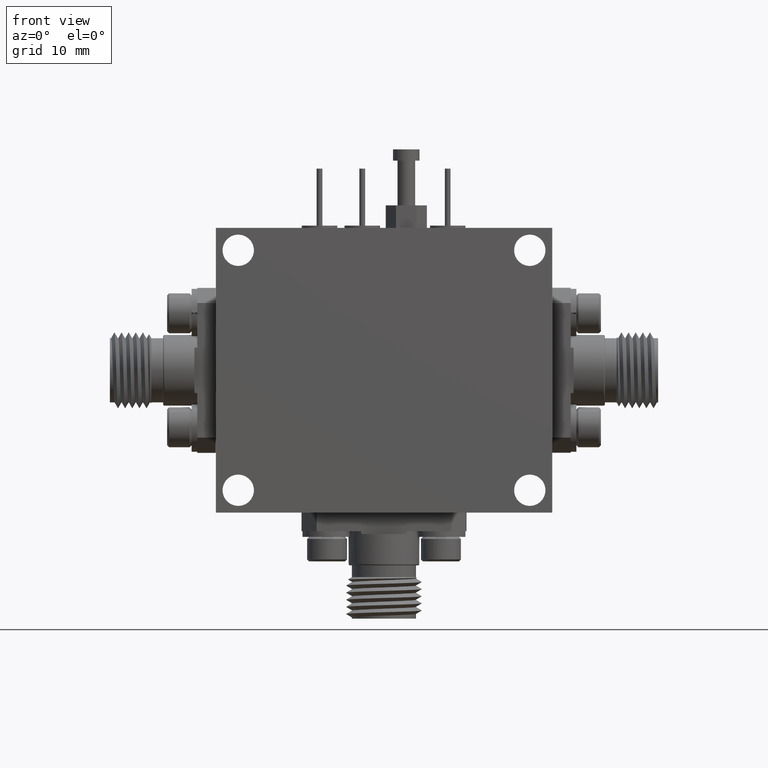
[diagram: clean part render]
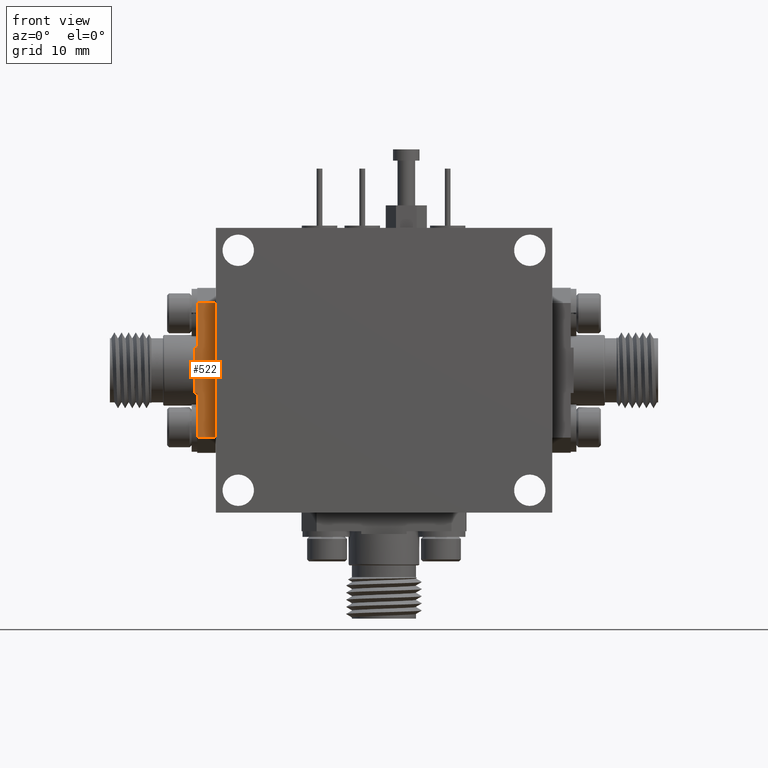
[diagram: same view with one face highlighted and labeled with its STEP entity id]
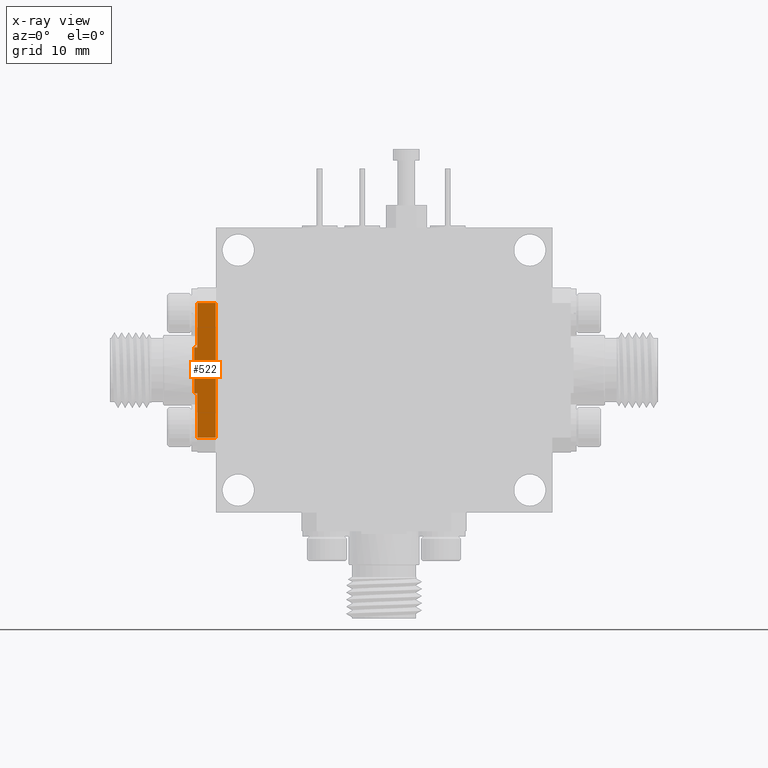
[diagram: x-ray of the same camera — body ghosted, the highlighted face saturated]
A machine part, front view. The second image highlights one B-rep face of the part: STEP entity #522.
The next image is the same camera in x-ray: the body ghosted, the highlighted face saturated — about 0% of this face is hidden behind the body in this view.
In plain terms, the highlighted planar face has unit normal (-0, 1, -0).
Its self-contained STEP definition (entity closure, byte-faithful):
#334 = CARTESIAN_POINT ( 'NONE',  ( -0.06890135264411047200, 0.6307667375718607500, 0.8853301636433635900 ) ) ;
#522 = ADVANCED_FACE ( 'NONE', ( #6090 ), #26674, .F. ) ;
#1013 = EDGE_CURVE ( 'NONE', #16534, #16725, #33901, .T. ) ;
#1406 = CARTESIAN_POINT ( 'NONE',  ( -0.05890135264411031800, 0.6307667375718607500, 0.5316388269033710500 ) ) ;
#2067 = VECTOR ( 'NONE', #10062, 39.37007874015748100 ) ;
#2663 = CARTESIAN_POINT ( 'NONE',  ( -0.05890135264411029000, 0.6307667375718607500, 1.042124349095312500 ) ) ;
#2882 = VERTEX_POINT ( 'NONE', #14050 ) ;
#3835 = VECTOR ( 'NONE', #19912, 39.37007874015748100 ) ;
#5537 = VECTOR ( 'NONE', #23177, 39.37007874015748100 ) ;
#5554 = CARTESIAN_POINT ( 'NONE',  ( -0.06890135264411019500, 0.6307667375718607500, 0.7259438405161892100 ) ) ;
#6090 = FACE_OUTER_BOUND ( 'NONE', #9667, .T. ) ;
#6252 = DIRECTION ( 'NONE',  ( 1.000000000000000000, -7.205886103679894100E-017, -1.577915401140480500E-016 ) ) ;
#6552 = ORIENTED_EDGE ( 'NONE', *, *, #28955, .F. ) ;
#6654 = CARTESIAN_POINT ( 'NONE',  ( 0.006098647355889674900, 0.6307667375718607500, 0.5691496550642402000 ) ) ;
#7209 = VECTOR ( 'NONE', #37526, 39.37007874015748100 ) ;
#7935 = CARTESIAN_POINT ( 'NONE',  ( -0.05890135264411030400, 0.6307667375718607500, 0.8853301636433635900 ) ) ;
#8130 = LINE ( 'NONE', #2663, #7209 ) ;
#8366 = EDGE_CURVE ( 'NONE', #19789, #36614, #31237, .T. ) ;
#8570 = VECTOR ( 'NONE', #17309, 39.37007874015748100 ) ;
#8848 = CARTESIAN_POINT ( 'NONE',  ( 0.006098647355889672300, 0.6307667375718607500, 0.5316388269033708300 ) ) ;
#9414 = LINE ( 'NONE', #18201, #29951 ) ;
#9667 = EDGE_LOOP ( 'NONE', ( #27008, #12512, #29089, #31483, #14895, #33853, #6552, #14021 ) ) ;
#10062 = DIRECTION ( 'NONE',  ( -6.425306481098354000E-017, 1.113111725038923500E-016, 1.000000000000000000 ) ) ;
#10619 = VECTOR ( 'NONE', #30764, 39.37007874015748100 ) ;
#11018 = CARTESIAN_POINT ( 'NONE',  ( 0.006098647355889697500, 0.6307667375718607500, 1.042124349095312300 ) ) ;
#11587 = EDGE_CURVE ( 'NONE', #2882, #33018, #33817, .T. ) ;
#12275 = DIRECTION ( 'NONE',  ( -2.161765831103969000E-016, 1.000000000000000000, -1.113111725038923500E-016 ) ) ;
#12368 = CARTESIAN_POINT ( 'NONE',  ( -0.05890135264411029000, 0.6307667375718607500, 1.042124349095312000 ) ) ;
#12512 = ORIENTED_EDGE ( 'NONE', *, *, #16162, .T. ) ;
#13799 = CARTESIAN_POINT ( 'NONE',  ( -0.05890135264411030400, 0.6307667375718607500, 0.7259438405161892100 ) ) ;
#14021 = ORIENTED_EDGE ( 'NONE', *, *, #17500, .T. ) ;
#14050 = CARTESIAN_POINT ( 'NONE',  ( -0.06890135264411047200, 0.6307667375718607500, 0.8853301636433635900 ) ) ;
#14895 = ORIENTED_EDGE ( 'NONE', *, *, #17728, .F. ) ;
#14948 = LINE ( 'NONE', #30701, #34108 ) ;
#16162 = EDGE_CURVE ( 'NONE', #16534, #19789, #14948, .T. ) ;
#16534 = VERTEX_POINT ( 'NONE', #27956 ) ;
#16725 = VERTEX_POINT ( 'NONE', #13799 ) ;
#17309 = DIRECTION ( 'NONE',  ( -6.425306481098354000E-017, 1.113111725038923300E-016, 1.000000000000000000 ) ) ;
#17500 = EDGE_CURVE ( 'NONE', #26166, #16725, #9414, .T. ) ;
#17728 = EDGE_CURVE ( 'NONE', #33018, #30240, #37245, .T. ) ;
#17838 = AXIS2_PLACEMENT_3D ( 'NONE', #29861, #12275, #29612 ) ;
#18201 = CARTESIAN_POINT ( 'NONE',  ( -0.06890135264411019500, 0.6307667375718607500, 0.7259438405161892100 ) ) ;
#19789 = VERTEX_POINT ( 'NONE', #6654 ) ;
#19912 = DIRECTION ( 'NONE',  ( -6.425306481098354000E-017, 1.113111725038923500E-016, 1.000000000000000000 ) ) ;
#23177 = DIRECTION ( 'NONE',  ( 1.000000000000000000, -7.205886103679894100E-017, -1.577915401140480500E-016 ) ) ;
#24958 = DIRECTION ( 'NONE',  ( 1.000000000000000000, -7.205886103679894100E-017, -1.577915401140480500E-016 ) ) ;
#26166 = VERTEX_POINT ( 'NONE', #5554 ) ;
#26674 = PLANE ( 'NONE',  #17838 ) ;
#27008 = ORIENTED_EDGE ( 'NONE', *, *, #1013, .F. ) ;
#27956 = CARTESIAN_POINT ( 'NONE',  ( -0.05890135264411031100, 0.6307667375718606400, 0.5691496550642404200 ) ) ;
#28939 = EDGE_CURVE ( 'NONE', #36614, #30240, #8130, .T. ) ;
#28955 = EDGE_CURVE ( 'NONE', #26166, #2882, #29574, .T. ) ;
#29089 = ORIENTED_EDGE ( 'NONE', *, *, #8366, .T. ) ;
#29574 = LINE ( 'NONE', #31897, #8570 ) ;
#29612 = DIRECTION ( 'NONE',  ( 6.425306481098355200E-017, -1.113111725038923300E-016, -1.000000000000000000 ) ) ;
#29861 = CARTESIAN_POINT ( 'NONE',  ( -0.05890135264411031800, 0.6307667375718607500, 0.5316388269033710500 ) ) ;
#29951 = VECTOR ( 'NONE', #6252, 39.37007874015748100 ) ;
#30240 = VERTEX_POINT ( 'NONE', #12368 ) ;
#30701 = CARTESIAN_POINT ( 'NONE',  ( -0.05890135264411031100, 0.6307667375718607500, 0.5691496550642404200 ) ) ;
#30764 = DIRECTION ( 'NONE',  ( -6.425306481098354000E-017, 1.113111725038923500E-016, 1.000000000000000000 ) ) ;
#31237 = LINE ( 'NONE', #8848, #3835 ) ;
#31483 = ORIENTED_EDGE ( 'NONE', *, *, #28939, .T. ) ;
#31897 = CARTESIAN_POINT ( 'NONE',  ( -0.06890135264411047200, 0.6307667375718607500, 0.8853301636433635900 ) ) ;
#33018 = VERTEX_POINT ( 'NONE', #7935 ) ;
#33817 = LINE ( 'NONE', #334, #5537 ) ;
#33853 = ORIENTED_EDGE ( 'NONE', *, *, #11587, .F. ) ;
#33901 = LINE ( 'NONE', #1406, #10619 ) ;
#34108 = VECTOR ( 'NONE', #24958, 39.37007874015748100 ) ;
#36198 = CARTESIAN_POINT ( 'NONE',  ( -0.05890135264411031800, 0.6307667375718607500, 0.5316388269033710500 ) ) ;
#36614 = VERTEX_POINT ( 'NONE', #11018 ) ;
#37245 = LINE ( 'NONE', #36198, #2067 ) ;
#37526 = DIRECTION ( 'NONE',  ( -1.000000000000000000, 7.205886103679894100E-017, 1.577915401140480500E-016 ) ) ;